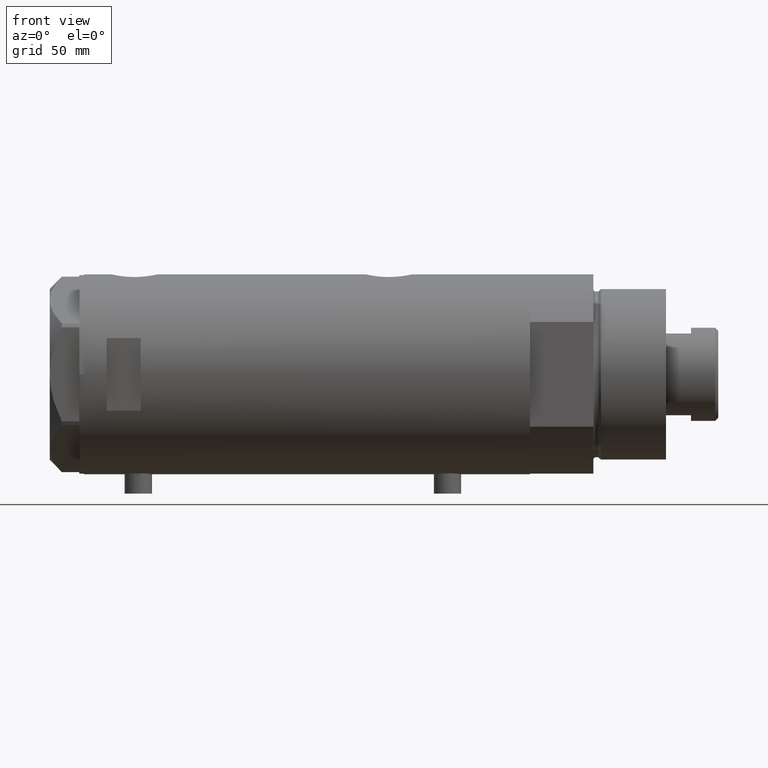
[diagram: clean part render]
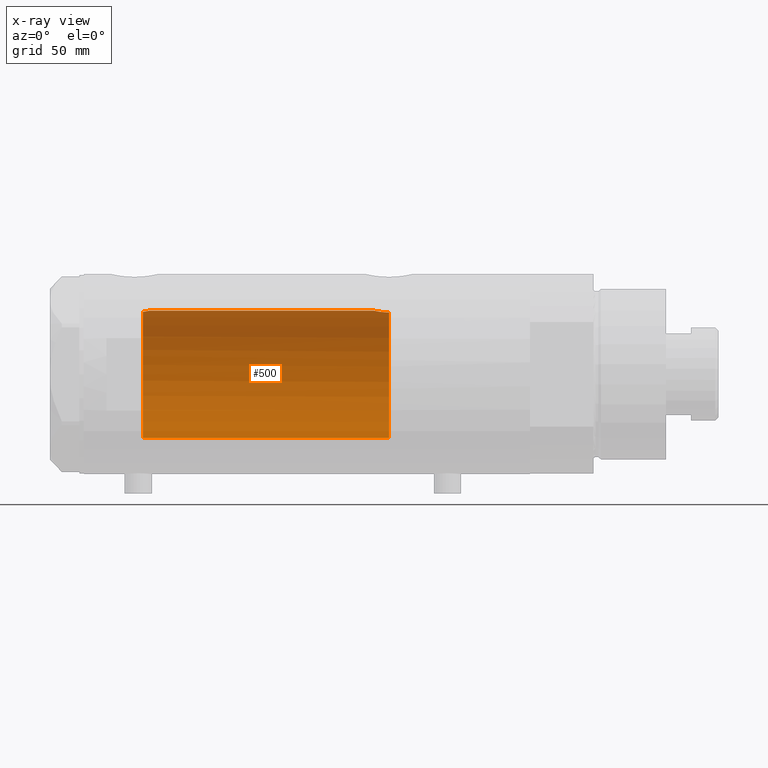
[diagram: x-ray — body ghosted, one internal face saturated and labeled with its STEP entity id]
A machine part, front view, then the same camera in x-ray: the body is ghosted and one INTERNAL B-rep face — a face not visible from any outside direction — is saturated and labeled: STEP entity #500.
In plain terms, the highlighted cylindrical surface (partial cylindrical patch) has radius 28 mm, axis along (1, 0, -0).
Its self-contained STEP definition (entity closure, byte-faithful):
#55 = DIRECTION ( 'NONE',  ( 1.000000000000000000, 0.000000000000000000, 0.000000000000000000 ) ) ;
#124 = VERTEX_POINT ( 'NONE', #4420 ) ;
#252 = CARTESIAN_POINT ( 'NONE',  ( 27.47751794615729537, 5.385218554237049204, -32.31285718566402210 ) ) ;
#280 = B_SPLINE_CURVE_WITH_KNOTS ( 'NONE', 3,
 ( #2259, #1650, #3058, #1322, #2719, #2003, #2359, #3422, #1245, #3011, #4018, #2641, #1906, #882, #252, #1271, #3085, #3654, #2281, #2666, #4036, #2740, #3465, #1420 ),
 .UNSPECIFIED., .F., .F.,
 ( 4, 2, 2, 2, 2, 2, 2, 2, 2, 2, 2, 4 ),
 ( 0.02064447638625019690, 0.02194711032043805340, 0.02324974425462590644, 0.02390106122171983469, 0.02455237818881376294, 0.02585501212300162291, 0.02650632909009555116, 0.02715764605718948288, 0.02846027999137732550, 0.02976291392556516466, 0.03041423089265908597, 0.03106554785975300728 ),
 .UNSPECIFIED. ) ;
#290 = CARTESIAN_POINT ( 'NONE',  ( 27.59012538417911031, 4.776664836238046163, 71.36675298569846859 ) ) ;
#305 = AXIS2_PLACEMENT_3D ( 'NONE', #3963, #1190, #3239 ) ;
#327 = EDGE_CURVE ( 'NONE', #2716, #4060, #280, .T. ) ;
#331 = ORIENTED_EDGE ( 'NONE', *, *, #2928, .F. ) ;
#339 = CARTESIAN_POINT ( 'NONE',  ( 28.00000000000000000, 0.000000000000000000, 69.32000000000000739 ) ) ;
#434 = FACE_OUTER_BOUND ( 'NONE', #4065, .T. ) ;
#500 = ADVANCED_FACE ( 'NONE', ( #434 ), #3560, .F. ) ;
#521 = CIRCLE ( 'NONE', #2143, 28.00000000000000000 ) ;
#534 = VERTEX_POINT ( 'NONE', #1466 ) ;
#574 = EDGE_CURVE ( 'NONE', #3208, #124, #521, .T. ) ;
#603 = CIRCLE ( 'NONE', #3194, 28.00000000000000000 ) ;
#645 = DIRECTION ( 'NONE',  ( 0.000000000000000000, 0.000000000000000000, -1.000000000000000000 ) ) ;
#767 = CARTESIAN_POINT ( 'NONE',  ( 0.000000000000000000, 0.000000000000000000, 72.20000000000001705 ) ) ;
#770 = LINE ( 'NONE', #1033, #1248 ) ;
#807 = EDGE_CURVE ( 'NONE', #534, #4060, #603, .T. ) ;
#863 = CARTESIAN_POINT ( 'NONE',  ( 27.21605408577812568, 6.579240077698946365, -36.20000000000000995 ) ) ;
#882 = CARTESIAN_POINT ( 'NONE',  ( 27.50226589723266102, 5.257822516958276182, -32.13779315141981385 ) ) ;
#997 = CARTESIAN_POINT ( 'NONE',  ( 27.77752716845531822, 3.554080867558359280, 70.33702809021863800 ) ) ;
#1033 = CARTESIAN_POINT ( 'NONE',  ( 28.00000000000000000, 3.429011037612589276E-15, 98.20000000000000284 ) ) ;
#1042 = EDGE_CURVE ( 'NONE', #124, #534, #1397, .T. ) ;
#1190 = DIRECTION ( 'NONE',  ( -0.000000000000000000, -0.000000000000000000, -1.000000000000000000 ) ) ;
#1245 = CARTESIAN_POINT ( 'NONE',  ( 27.77951318121831292, 3.511620812961478766, -30.53115835401436584 ) ) ;
#1248 = VECTOR ( 'NONE', #1404, 1000.000000000000000 ) ;
#1271 = CARTESIAN_POINT ( 'NONE',  ( 27.40633791352276560, 5.740289853568799394, -32.85469713442370221 ) ) ;
#1322 = CARTESIAN_POINT ( 'NONE',  ( 27.94984428957576128, 1.729919005741101357, -29.73624844305086512 ) ) ;
#1396 = DIRECTION ( 'NONE',  ( -1.000000000000000000, 0.000000000000000000, 0.000000000000000000 ) ) ;
#1397 = LINE ( 'NONE', #3379, #4189 ) ;
#1404 = DIRECTION ( 'NONE',  ( -0.000000000000000000, -0.000000000000000000, -1.000000000000000000 ) ) ;
#1420 = CARTESIAN_POINT ( 'NONE',  ( 27.21605408577812568, 6.579240077698946365, -36.20000000000000995 ) ) ;
#1466 = CARTESIAN_POINT ( 'NONE',  ( -28.00000000000000000, 0.000000000000000000, -36.20000000000000995 ) ) ;
#1650 = CARTESIAN_POINT ( 'NONE',  ( 28.00000000000000355, 0.4344375524774767294, -29.51999999999999957 ) ) ;
#1691 = CARTESIAN_POINT ( 'NONE',  ( 27.98435453724556510, 1.072101232728050579, 69.38566097371688102 ) ) ;
#1707 = CARTESIAN_POINT ( 'NONE',  ( 27.62184089756353700, 4.590621453796800644, 71.17847296394721468 ) ) ;
#1906 = CARTESIAN_POINT ( 'NONE',  ( 27.55311958554909424, 4.984468698502475981, -31.79897075987406296 ) ) ;
#1995 = CARTESIAN_POINT ( 'NONE',  ( 27.87926027245440608, 2.609415915507860895, 69.85365920364245085 ) ) ;
#2003 = CARTESIAN_POINT ( 'NONE',  ( 27.86588799758910895, 2.744542339393448493, -30.11578757899564351 ) ) ;
#2061 = CARTESIAN_POINT ( 'NONE',  ( 27.85549123290575579, 2.850830541327404877, 69.96370468682907529 ) ) ;
#2143 = AXIS2_PLACEMENT_3D ( 'NONE', #767, #3946, #55 ) ;
#2232 = CARTESIAN_POINT ( 'NONE',  ( 28.00000000000000000, 8.058211040487717449E-16, -29.52000000000000313 ) ) ;
#2259 = CARTESIAN_POINT ( 'NONE',  ( 28.00000000000000000, 8.058211040487717449E-16, -29.52000000000000313 ) ) ;
#2281 = CARTESIAN_POINT ( 'NONE',  ( 27.26132124301009441, 6.389601967157239493, -34.46983701249831711 ) ) ;
#2359 = CARTESIAN_POINT ( 'NONE',  ( 27.84585502960274184, 2.940342086136633171, -30.20946914370765768 ) ) ;
#2399 = CARTESIAN_POINT ( 'NONE',  ( 28.00000000000000355, 0.5407212781083803321, 69.32000000000003581 ) ) ;
#2641 = CARTESIAN_POINT ( 'NONE',  ( 27.57921322802619457, 4.838471943606465153, -31.63541026849052429 ) ) ;
#2666 = CARTESIAN_POINT ( 'NONE',  ( 27.23306259439848276, 6.508606919525674606, -35.10931986330979271 ) ) ;
#2675 = ORIENTED_EDGE ( 'NONE', *, *, #4433, .F. ) ;
#2716 = VERTEX_POINT ( 'NONE', #2232 ) ;
#2719 = CARTESIAN_POINT ( 'NONE',  ( 27.92057377942991891, 2.145335874642057217, -29.86449057456583489 ) ) ;
#2740 = CARTESIAN_POINT ( 'NONE',  ( 27.21712162367727927, 6.574850051620749092, -35.76016190408788731 ) ) ;
#2928 = EDGE_CURVE ( 'NONE', #3208, #3502, #3300, .T. ) ;
#3011 = CARTESIAN_POINT ( 'NONE',  ( 27.70785054350542964, 4.050475470458777316, -30.89631279652927276 ) ) ;
#3058 = CARTESIAN_POINT ( 'NONE',  ( 27.98989376185446432, 0.8673308354119273478, -29.56259295538816545 ) ) ;
#3085 = CARTESIAN_POINT ( 'NONE',  ( 27.36295003163000672, 5.941130795499232065, -33.23794896005177435 ) ) ;
#3170 = ORIENTED_EDGE ( 'NONE', *, *, #807, .T. ) ;
#3194 = AXIS2_PLACEMENT_3D ( 'NONE', #4188, #645, #1396 ) ;
#3208 = VERTEX_POINT ( 'NONE', #3780 ) ;
#3239 = DIRECTION ( 'NONE',  ( -1.000000000000000000, 0.000000000000000000, 0.000000000000000000 ) ) ;
#3300 = B_SPLINE_CURVE_WITH_KNOTS ( 'NONE', 3,
 ( #4124, #4187, #3495, #290, #1707, #4146, #997, #2061, #1995, #4479, #4500, #1691, #2399, #339 ),
 .UNSPECIFIED., .F., .F.,
 ( 4, 2, 2, 2, 2, 2, 4 ),
 ( 0.03488855882532450325, 0.03568791961119571754, 0.03648728039706693183, 0.03808600196880933264, 0.03888536275468051917, 0.03968472354055171264, 0.04128344511229409958 ),
 .UNSPECIFIED. ) ;
#3379 = CARTESIAN_POINT ( 'NONE',  ( -28.00000000000000000, 0.000000000000000000, 98.20000000000000284 ) ) ;
#3422 = CARTESIAN_POINT ( 'NONE',  ( 27.80267334785860101, 3.323944738624912798, -30.41709962017577951 ) ) ;
#3465 = CARTESIAN_POINT ( 'NONE',  ( 27.21525044627862755, 6.582564457995944807, -35.98128103916471332 ) ) ;
#3495 = CARTESIAN_POINT ( 'NONE',  ( 27.52730847012277948, 5.126288527110444804, 71.76623399461912811 ) ) ;
#3497 = DIRECTION ( 'NONE',  ( -0.000000000000000000, -0.000000000000000000, -1.000000000000000000 ) ) ;
#3502 = VERTEX_POINT ( 'NONE', #4042 ) ;
#3560 = CYLINDRICAL_SURFACE ( 'NONE', #305, 28.00000000000000000 ) ;
#3654 = CARTESIAN_POINT ( 'NONE',  ( 27.28989504668421517, 6.268149480003700091, -34.05093353430704184 ) ) ;
#3765 = ORIENTED_EDGE ( 'NONE', *, *, #1042, .T. ) ;
#3780 = CARTESIAN_POINT ( 'NONE',  ( 27.46622653369042411, 5.441176343402230664, 72.20000000000001705 ) ) ;
#3819 = ORIENTED_EDGE ( 'NONE', *, *, #327, .F. ) ;
#3896 = ORIENTED_EDGE ( 'NONE', *, *, #574, .T. ) ;
#3946 = DIRECTION ( 'NONE',  ( 0.000000000000000000, 0.000000000000000000, 1.000000000000000000 ) ) ;
#3963 = CARTESIAN_POINT ( 'NONE',  ( 0.000000000000000000, 0.000000000000000000, 98.20000000000000284 ) ) ;
#4018 = CARTESIAN_POINT ( 'NONE',  ( 27.65669575048418238, 4.382057994727794004, -31.17233761202032838 ) ) ;
#4036 = CARTESIAN_POINT ( 'NONE',  ( 27.22604017942136423, 6.537820648187911310, -35.32472952793341392 ) ) ;
#4042 = CARTESIAN_POINT ( 'NONE',  ( 28.00000000000000000, 0.000000000000000000, 69.32000000000000739 ) ) ;
#4060 = VERTEX_POINT ( 'NONE', #863 ) ;
#4065 = EDGE_LOOP ( 'NONE', ( #2675, #331, #3896, #3765, #3170, #3819 ) ) ;
#4124 = CARTESIAN_POINT ( 'NONE',  ( 27.46622653369042411, 5.441176343402230664, 72.20000000000001705 ) ) ;
#4146 = CARTESIAN_POINT ( 'NONE',  ( 27.71586615897684780, 3.998795151939225523, 70.64767395625744939 ) ) ;
#4187 = CARTESIAN_POINT ( 'NONE',  ( 27.49602064413222635, 5.290780227724656726, 71.97882924682045314 ) ) ;
#4188 = CARTESIAN_POINT ( 'NONE',  ( 0.000000000000000000, 0.000000000000000000, -36.20000000000000995 ) ) ;
#4189 = VECTOR ( 'NONE', #3497, 1000.000000000000000 ) ;
#4420 = CARTESIAN_POINT ( 'NONE',  ( -28.00000000000000000, 0.000000000000000000, 72.20000000000001705 ) ) ;
#4433 = EDGE_CURVE ( 'NONE', #3502, #2716, #770, .T. ) ;
#4479 = CARTESIAN_POINT ( 'NONE',  ( 27.92131942247208798, 2.112374604004425116, 69.66259974202708349 ) ) ;
#4500 = CARTESIAN_POINT ( 'NONE',  ( 27.93969014165221765, 1.855286977351521704, 69.58124112405666040 ) ) ;